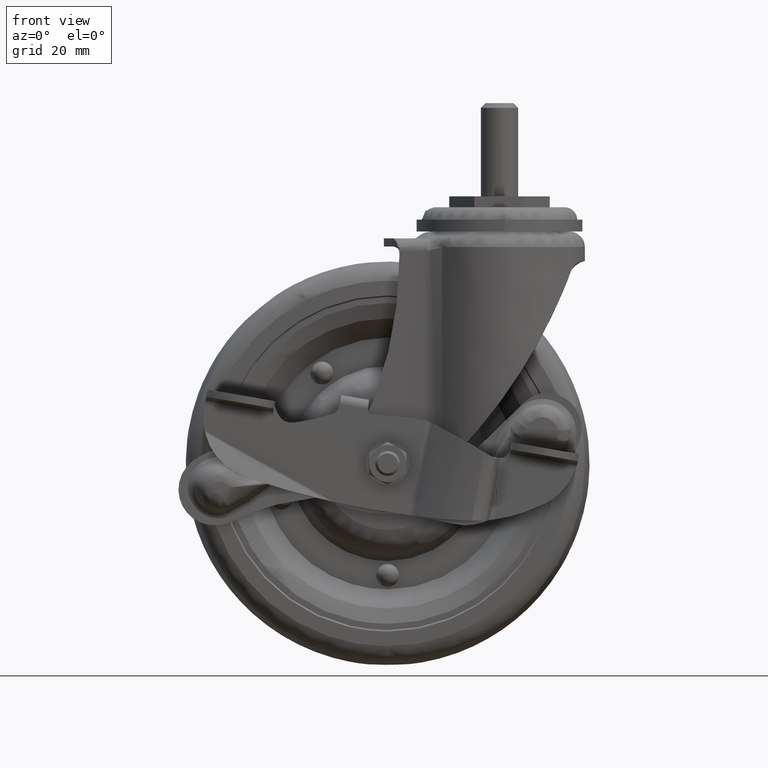
[diagram: clean part render]
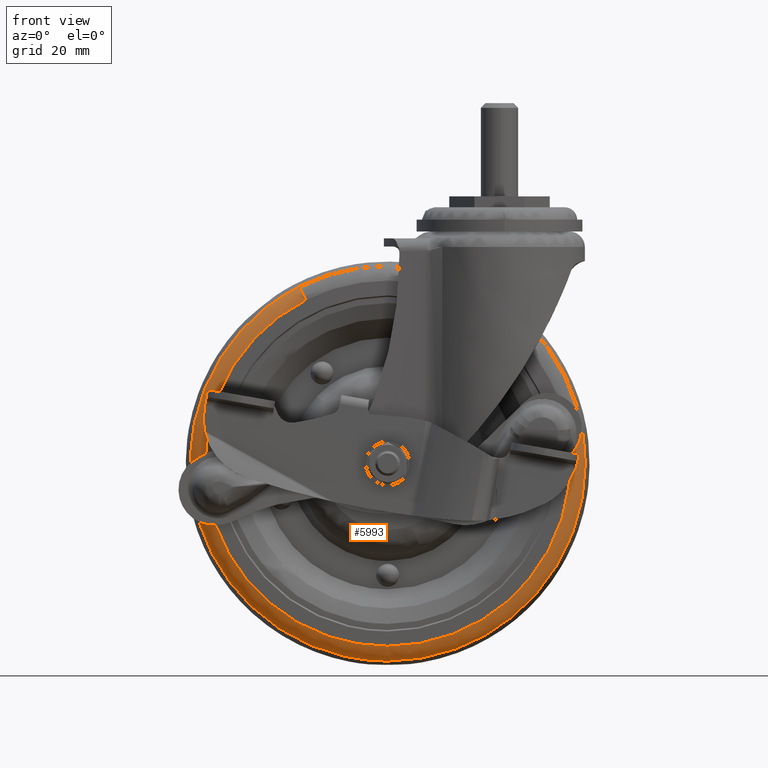
[diagram: same view with one face highlighted and labeled with its STEP entity id]
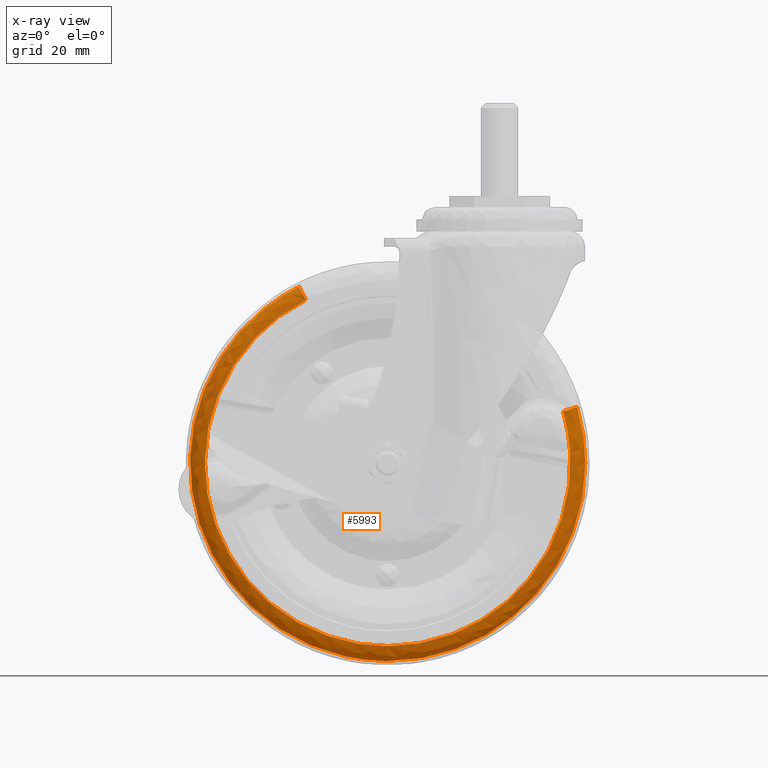
[diagram: x-ray of the same camera — body ghosted, the highlighted face saturated]
A machine part, front view. The second image highlights one B-rep face of the part: STEP entity #5993.
The next image is the same camera in x-ray: the body ghosted, the highlighted face saturated — about 1% of this face is hidden behind the body in this view.
In plain terms, the highlighted face is a freeform B-spline surface patch.
Its self-contained STEP definition (entity closure, byte-faithful):
#5733=CARTESIAN_POINT('',(-75.680395793609506,-8.999999999958416,-36.273550142210539));
#5734=VERTEX_POINT('',#5733);
#5735=CARTESIAN_POINT('',(-36.799418329474904,-9.000026311397241,-149.613332871817990));
#5736=VERTEX_POINT('',#5735);
#5737=CARTESIAN_POINT('',(-75.680395793609506,-8.999999999958416,-36.273550142210539));
#5738=CARTESIAN_POINT('',(-99.618176033575196,-9.000002261817190,-55.375194658066974));
#5739=CARTESIAN_POINT('',(-99.618176008436762,-9.000008622737870,-86.000185288462561));
#5740=CARTESIAN_POINT('',(-99.618175956868086,-9.000021671449114,-148.823898965477440));
#5741=CARTESIAN_POINT('',(-36.799418329474911,-9.000026311397241,-149.613332871817930));
#5749=(BOUNDED_CURVE()B_SPLINE_CURVE(2,(#5737,#5738,#5739,#5740,#5741),.UNSPECIFIED.,.F.,.U.)B_SPLINE_CURVE_WITH_KNOTS((3,2,3),(0.608098577602673,0.750000000000000,0.997784323855597),.UNSPECIFIED.)CURVE()GEOMETRIC_REPRESENTATION_ITEM()RATIONAL_B_SPLINE_CURVE((0.856230744649397,0.833752142559358,1.0,0.709702607257677,0.994854359936948))REPRESENTATION_ITEM(''));
#5750=EDGE_CURVE('',#5734,#5736,#5749,.T.);
#5812=CARTESIAN_POINT('',(-64.497286982124081,-9.000000000324461,-29.121572003994540));
#5813=VERTEX_POINT('',#5812);
#5814=CARTESIAN_POINT('',(-64.497286982124081,-9.000000000324462,-29.121572003994547));
#5815=CARTESIAN_POINT('',(-70.463969943216682,-8.999999999999998,-32.110995598250575));
#5816=CARTESIAN_POINT('',(-75.680395793609506,-8.999999999958416,-36.273550142210539));
#5824=(BOUNDED_CURVE()B_SPLINE_CURVE(2,(#5814,#5815,#5816),.UNSPECIFIED.,.F.,.U.)B_SPLINE_CURVE_WITH_KNOTS((3,3),(0.576154610385096,0.608098577602674),.UNSPECIFIED.)CURVE()GEOMETRIC_REPRESENTATION_ITEM()RATIONAL_B_SPLINE_CURVE((0.875915174757458,0.861290987993897,0.856230744649397))REPRESENTATION_ITEM(''));
#5825=EDGE_CURVE('',#5813,#5734,#5824,.T.);
#5842=CARTESIAN_POINT('',(24.979407914213809,-9.000000000245667,-67.867782384702849));
#5843=VERTEX_POINT('',#5842);
#5857=CARTESIAN_POINT('',(-36.0,-9.0,-149.618364042508290));
#5858=VERTEX_POINT('',#5857);
#5859=CARTESIAN_POINT('',(-36.0,-9.0,-149.618364042508290));
#5860=CARTESIAN_POINT('',(27.618176042508303,-9.000000000000002,-149.618364042508400));
#5861=CARTESIAN_POINT('',(27.618176042508299,-9.0,-86.000188000000009));
#5862=CARTESIAN_POINT('',(27.618176042508299,-9.0,-76.741978202694284));
#5863=CARTESIAN_POINT('',(24.979407914213805,-9.000000000245667,-67.867782384702849));
#5871=(BOUNDED_CURVE()B_SPLINE_CURVE(2,(#5859,#5860,#5861,#5862,#5863),.UNSPECIFIED.,.F.,.U.)B_SPLINE_CURVE_WITH_KNOTS((3,2,3),(0.0,0.250000000000000,0.298526662064482),.UNSPECIFIED.)CURVE()GEOMETRIC_REPRESENTATION_ITEM()RATIONAL_B_SPLINE_CURVE((1.0,0.707106781186548,1.0,0.943147478998645,0.908365862590463))REPRESENTATION_ITEM(''));
#5872=EDGE_CURVE('',#5858,#5843,#5871,.T.);
#5874=CARTESIAN_POINT('',(-36.799418329474911,-9.000026311397241,-149.613332871817930));
#5875=CARTESIAN_POINT('',(-36.399724944641221,-9.000013155698621,-149.618359905545500));
#5876=CARTESIAN_POINT('',(-36.0,-9.0,-149.618364042508290));
#5884=(BOUNDED_CURVE()B_SPLINE_CURVE(2,(#5874,#5875,#5876),.UNSPECIFIED.,.F.,.U.)B_SPLINE_CURVE_WITH_KNOTS((3,3),(0.997784323855597,1.0),.UNSPECIFIED.)CURVE()GEOMETRIC_REPRESENTATION_ITEM()RATIONAL_B_SPLINE_CURVE((0.994854359936948,0.997404173928871,1.0))REPRESENTATION_ITEM(''));
#5885=EDGE_CURVE('',#5736,#5858,#5884,.T.);
#5896=CARTESIAN_POINT('',(-64.532943659072188,-8.718326092074872,-29.050403740262261));
#5897=CARTESIAN_POINT('',(-112.275671559515160,-8.718326092074868,-52.970434044517980));
#5898=CARTESIAN_POINT('',(-97.055707214177431,-8.718326092074873,-104.155281435703000));
#5899=CARTESIAN_POINT('',(-78.900613778474451,-8.718326092074872,-165.210988649880510));
#5900=CARTESIAN_POINT('',(-17.844906564297034,-8.718326092074873,-147.055895214177440));
#5901=CARTESIAN_POINT('',(43.210800649880383,-8.718326092074872,-128.900801778474490));
#5902=CARTESIAN_POINT('',(25.055707214177424,-8.718326092074873,-67.845094564297057));
#5903=CARTESIAN_POINT('',(-64.081081599867602,-12.733448725486793,-29.952289192192467));
#5904=CARTESIAN_POINT('',(-111.067731627697570,-12.733448725486790,-53.493509855260676));
#5905=CARTESIAN_POINT('',(-96.088798299428333,-12.733448725486793,-103.867768236822100));
#5906=CARTESIAN_POINT('',(-78.221218062606283,-12.733448725486792,-163.956566536250450));
#5907=CARTESIAN_POINT('',(-18.132419763177925,-12.733448725486793,-146.088986299428310));
#5908=CARTESIAN_POINT('',(41.956378536250419,-12.733448725486792,-128.221406062606320));
#5909=CARTESIAN_POINT('',(24.088798299428351,-12.733448725486793,-68.132607763177958));
#5910=CARTESIAN_POINT('',(-62.229814544301512,-12.491450180980268,-33.647290334779690));
#5911=CARTESIAN_POINT('',(-106.118833274042700,-12.491450180980260,-55.636537791033980));
#5912=CARTESIAN_POINT('',(-92.127397727848788,-12.491450180980264,-102.689834169807090));
#5913=CARTESIAN_POINT('',(-75.437751558041725,-12.491450180980262,-158.817231897655830));
#5914=CARTESIAN_POINT('',(-19.310353830192941,-12.491450180980264,-142.127585727848730));
#5915=CARTESIAN_POINT('',(36.817043897655843,-12.491450180980262,-125.437939558041780));
#5916=CARTESIAN_POINT('',(20.127397727848788,-12.491450180980264,-69.310541830192946));
#5924=(BOUNDED_SURFACE()B_SPLINE_SURFACE(2,2,((#5896,#5903,#5910),(#5897,#5904,#5911),(#5898,#5905,#5912),(#5899,#5906,#5913),(#5900,#5907,#5914),(#5901,#5908,#5915),(#5902,#5909,#5916)),.UNSPECIFIED.,.F.,.F.,.U.)B_SPLINE_SURFACE_WITH_KNOTS((3,2,2,3),(3,3),(0.0,92.873380677556995,198.411313265690010,303.949245853822900),(0.0,7.205192009063034),.UNSPECIFIED.)GEOMETRIC_REPRESENTATION_ITEM()RATIONAL_B_SPLINE_SURFACE(((0.862640995262521,0.664808873303454,0.863585888590369),(0.682518655348317,0.525994545543964,0.683266251772683),(0.919521734182796,0.708644976806450,0.920528931795954),(0.650200053689069,0.501087668553625,0.650912249951328),(0.919521734182796,0.708644976806450,0.920528931795954),(0.650200053689069,0.501087668553625,0.650912249951328),(0.919521734182796,0.708644976806450,0.920528931795954)))REPRESENTATION_ITEM('')SURFACE());
#5925=ORIENTED_EDGE('',*,*,#5825,.T.);
#5926=ORIENTED_EDGE('',*,*,#5750,.T.);
#5927=ORIENTED_EDGE('',*,*,#5885,.T.);
#5928=ORIENTED_EDGE('',*,*,#5872,.T.);
#5929=CARTESIAN_POINT('',(20.407550367514549,-12.500000000000000,-69.227237621834092));
#5930=VERTEX_POINT('',#5929);
#5931=CARTESIAN_POINT('',(24.979407914213809,-9.000000000245667,-67.867782384702863));
#5932=CARTESIAN_POINT('',(23.924363865358387,-12.499999995355564,-68.181502823947838));
#5933=CARTESIAN_POINT('',(20.407550367514549,-12.500000000000002,-69.227237621834107));
#5941=(BOUNDED_CURVE()B_SPLINE_CURVE(2,(#5931,#5932,#5933),.UNSPECIFIED.,.F.,.U.)B_SPLINE_CURVE_WITH_KNOTS((3,3),(-1.684161954391756,-0.312243932217301),.UNSPECIFIED.)CURVE()GEOMETRIC_REPRESENTATION_ITEM()RATIONAL_B_SPLINE_CURVE((0.901240387156888,0.726972179756789,0.902155871705264))REPRESENTATION_ITEM(''));
#5942=EDGE_CURVE('',#5843,#5930,#5941,.T.);
#5943=ORIENTED_EDGE('',*,*,#5942,.T.);
#5944=CARTESIAN_POINT('',(-36.0,-12.500000000000000,-144.848668035423490));
#5945=VERTEX_POINT('',#5944);
#5946=CARTESIAN_POINT('',(-36.0,-12.500000000000000,-144.848668035423490));
#5947=CARTESIAN_POINT('',(22.848480035423506,-12.500000000000000,-144.848668035423540));
#5948=CARTESIAN_POINT('',(22.848480035423499,-12.500000000000000,-86.000188000000009));
#5949=CARTESIAN_POINT('',(22.848480035423499,-12.499999999999995,-77.436101314104448));
#5950=CARTESIAN_POINT('',(20.407550367514553,-12.499999999999996,-69.227237621834092));
#5958=(BOUNDED_CURVE()B_SPLINE_CURVE(2,(#5946,#5947,#5948,#5949,#5950),.UNSPECIFIED.,.F.,.U.)B_SPLINE_CURVE_WITH_KNOTS((3,2,3),(0.0,0.250000000000000,0.298526662064994),.UNSPECIFIED.)CURVE()GEOMETRIC_REPRESENTATION_ITEM()RATIONAL_B_SPLINE_CURVE((1.0,0.707106781186548,1.0,0.943147478998045,0.908365862589729))REPRESENTATION_ITEM(''));
#5959=EDGE_CURVE('',#5945,#5930,#5958,.T.);
#5960=ORIENTED_EDGE('',*,*,#5959,.F.);
#5961=CARTESIAN_POINT('',(-62.360737271753933,-12.500000000000000,-33.385977616543393));
#5962=VERTEX_POINT('',#5961);
#5963=CARTESIAN_POINT('',(-62.360737271753941,-12.499999999999998,-33.385977616543393));
#5964=CARTESIAN_POINT('',(-94.848480035423492,-12.499999999999998,-49.662965258587256));
#5965=CARTESIAN_POINT('',(-94.848480035423492,-12.500000000000000,-86.000188000000009));
#5966=CARTESIAN_POINT('',(-94.848480035423506,-12.500000000000000,-144.848668035423540));
#5967=CARTESIAN_POINT('',(-36.0,-12.500000000000000,-144.848668035423490));
#5975=(BOUNDED_CURVE()B_SPLINE_CURVE(2,(#5963,#5964,#5965,#5966,#5967),.UNSPECIFIED.,.F.,.U.)B_SPLINE_CURVE_WITH_KNOTS((3,2,3),(0.576154610386458,0.750000000000000,1.0),.UNSPECIFIED.)CURVE()GEOMETRIC_REPRESENTATION_ITEM()RATIONAL_B_SPLINE_CURVE((0.875915174756211,0.796327457040844,1.0,0.707106781186548,1.0))REPRESENTATION_ITEM(''));
#5976=EDGE_CURVE('',#5962,#5945,#5975,.T.);
#5977=ORIENTED_EDGE('',*,*,#5976,.F.);
#5978=CARTESIAN_POINT('',(-64.497286982124081,-9.000000000324461,-29.121572003994544));
#5979=CARTESIAN_POINT('',(-64.004237049858759,-12.499999983722143,-30.105665604974515));
#5980=CARTESIAN_POINT('',(-62.360737271753933,-12.499999999999998,-33.385977616543386));
#5988=(BOUNDED_CURVE()B_SPLINE_CURVE(2,(#5978,#5979,#5980),.UNSPECIFIED.,.F.,.U.)B_SPLINE_CURVE_WITH_KNOTS((3,3),(-1.684161954353467,-0.312243935895582),.UNSPECIFIED.)CURVE()GEOMETRIC_REPRESENTATION_ITEM()RATIONAL_B_SPLINE_CURVE((0.845490514947256,0.682002373373120,0.846349367621039))REPRESENTATION_ITEM(''));
#5989=EDGE_CURVE('',#5813,#5962,#5988,.T.);
#5990=ORIENTED_EDGE('',*,*,#5989,.F.);
#5991=EDGE_LOOP('',(#5925,#5926,#5927,#5928,#5943,#5960,#5977,#5990));
#5992=FACE_OUTER_BOUND('',#5991,.T.);
#5993=ADVANCED_FACE('',(#5992),#5924,.T.);